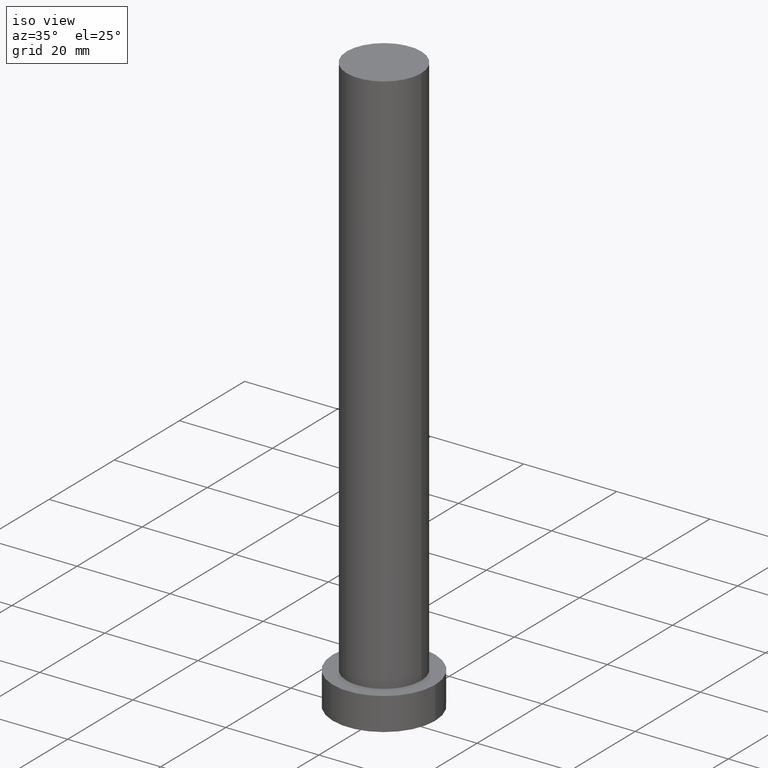
[diagram: clean part render]
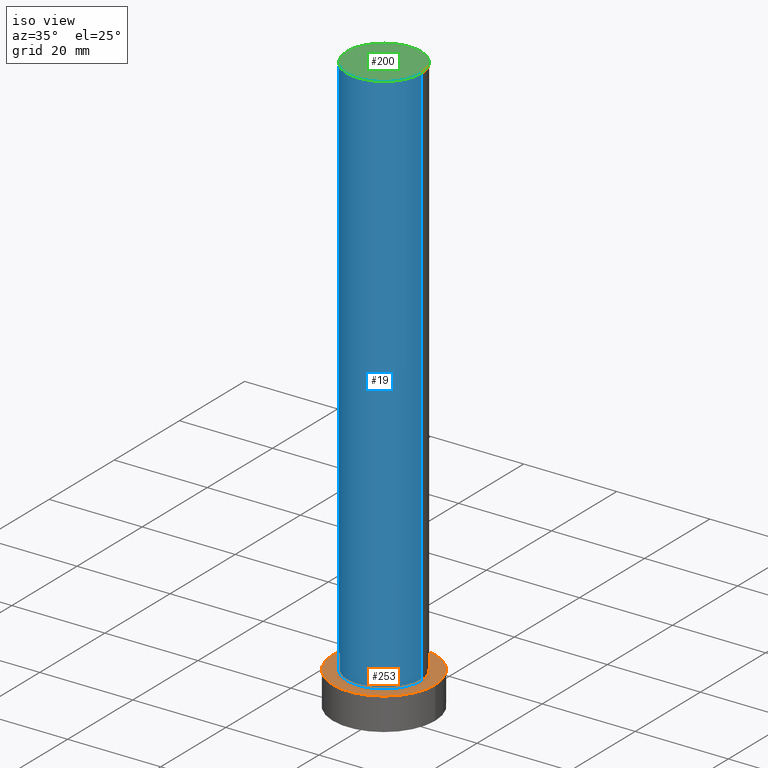
[diagram: same view with three faces highlighted in distinct colors, each labeled with its STEP entity id]
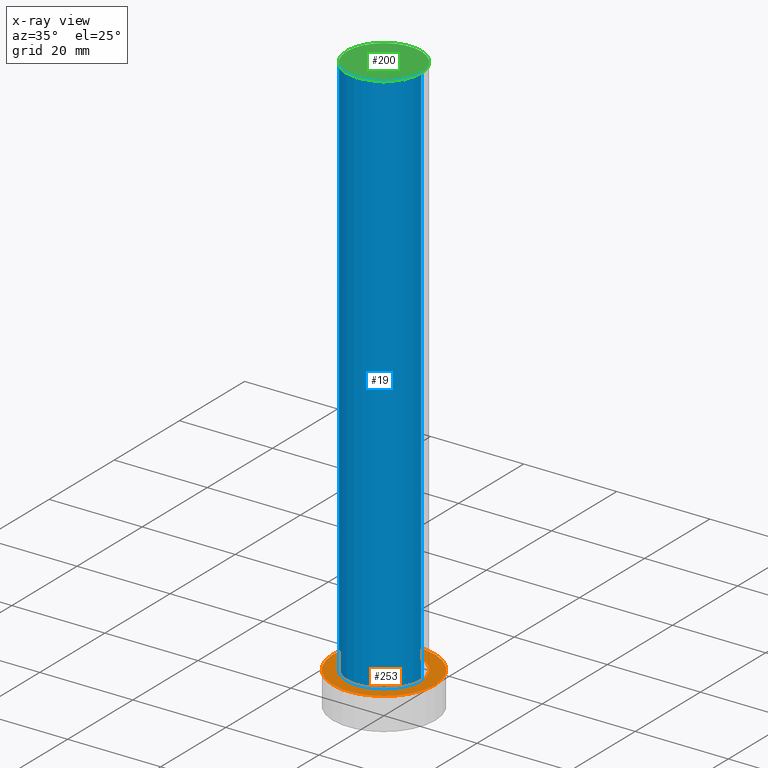
[diagram: x-ray of the same camera — body ghosted, the three highlighted faces saturated]
A machine part, iso view with three faces highlighted in distinct colors.
The next image is the same camera in x-ray (body ghosted, the three faces saturated) — at least one of them is partly hidden behind the body in this view.
Their STEP definitions:

[orange] entity #253 — the highlighted planar face has unit normal (0, 0, 1).
#13 = CARTESIAN_POINT ( 'NONE',  ( 0.000000000000000000, 0.000000000000000000, 7.000000000000000000 ) ) ;
#15 = ORIENTED_EDGE ( 'NONE', *, *, #97, .F. ) ;
#20 = DIRECTION ( 'NONE',  ( 1.000000000000000000, 0.000000000000000000, -0.000000000000000000 ) ) ;
#22 = EDGE_CURVE ( 'NONE', #158, #239, #190, .T. ) ;
#30 = AXIS2_PLACEMENT_3D ( 'NONE', #134, #84, #20 ) ;
#36 = CARTESIAN_POINT ( 'NONE',  ( 0.000000000000000000, 0.000000000000000000, 7.000000000000000000 ) ) ;
#40 = CARTESIAN_POINT ( 'NONE',  ( -11.00000000000000000, 0.000000000000000000, 7.000000000000000000 ) ) ;
#42 = CARTESIAN_POINT ( 'NONE',  ( 8.000000000000000000, 9.797174393178825657E-16, 7.000000000000000000 ) ) ;
#47 = AXIS2_PLACEMENT_3D ( 'NONE', #133, #235, #113 ) ;
#62 = AXIS2_PLACEMENT_3D ( 'NONE', #13, #180, #199 ) ;
#63 = FACE_BOUND ( 'NONE', #142, .T. ) ;
#75 = AXIS2_PLACEMENT_3D ( 'NONE', #125, #220, #98 ) ;
#84 = DIRECTION ( 'NONE',  ( 0.000000000000000000, 0.000000000000000000, 1.000000000000000000 ) ) ;
#85 = ORIENTED_EDGE ( 'NONE', *, *, #187, .T. ) ;
#93 = ORIENTED_EDGE ( 'NONE', *, *, #118, .T. ) ;
#97 = EDGE_CURVE ( 'NONE', #239, #158, #126, .T. ) ;
#98 = DIRECTION ( 'NONE',  ( 1.000000000000000000, 0.000000000000000000, 0.000000000000000000 ) ) ;
#113 = DIRECTION ( 'NONE',  ( 1.000000000000000000, 0.000000000000000000, 0.000000000000000000 ) ) ;
#118 = EDGE_CURVE ( 'NONE', #214, #246, #186, .T. ) ;
#125 = CARTESIAN_POINT ( 'NONE',  ( 0.000000000000000000, 0.000000000000000000, 7.000000000000000000 ) ) ;
#126 = CIRCLE ( 'NONE', #62, 8.000000000000000000 ) ;
#133 = CARTESIAN_POINT ( 'NONE',  ( 0.000000000000000000, 0.000000000000000000, 7.000000000000000000 ) ) ;
#134 = CARTESIAN_POINT ( 'NONE',  ( 0.000000000000000000, 0.000000000000000000, 7.000000000000000000 ) ) ;
#142 = EDGE_LOOP ( 'NONE', ( #216, #15 ) ) ;
#146 = AXIS2_PLACEMENT_3D ( 'NONE', #36, #152, #221 ) ;
#150 = FACE_OUTER_BOUND ( 'NONE', #175, .T. ) ;
#152 = DIRECTION ( 'NONE',  ( 0.000000000000000000, 0.000000000000000000, 1.000000000000000000 ) ) ;
#158 = VERTEX_POINT ( 'NONE', #238 ) ;
#171 = CIRCLE ( 'NONE', #47, 11.00000000000000000 ) ;
#172 = PLANE ( 'NONE',  #30 ) ;
#175 = EDGE_LOOP ( 'NONE', ( #85, #93 ) ) ;
#180 = DIRECTION ( 'NONE',  ( 0.000000000000000000, 0.000000000000000000, 1.000000000000000000 ) ) ;
#186 = CIRCLE ( 'NONE', #146, 11.00000000000000000 ) ;
#187 = EDGE_CURVE ( 'NONE', #246, #214, #171, .T. ) ;
#190 = CIRCLE ( 'NONE', #75, 8.000000000000000000 ) ;
#199 = DIRECTION ( 'NONE',  ( 1.000000000000000000, 0.000000000000000000, 0.000000000000000000 ) ) ;
#214 = VERTEX_POINT ( 'NONE', #241 ) ;
#216 = ORIENTED_EDGE ( 'NONE', *, *, #22, .F. ) ;
#220 = DIRECTION ( 'NONE',  ( 0.000000000000000000, 0.000000000000000000, 1.000000000000000000 ) ) ;
#221 = DIRECTION ( 'NONE',  ( 1.000000000000000000, 0.000000000000000000, 0.000000000000000000 ) ) ;
#235 = DIRECTION ( 'NONE',  ( 0.000000000000000000, 0.000000000000000000, 1.000000000000000000 ) ) ;
#238 = CARTESIAN_POINT ( 'NONE',  ( -8.000000000000000000, 0.000000000000000000, 7.000000000000000000 ) ) ;
#239 = VERTEX_POINT ( 'NONE', #42 ) ;
#241 = CARTESIAN_POINT ( 'NONE',  ( 11.00000000000000000, 1.347111479062088405E-15, 7.000000000000000000 ) ) ;
#246 = VERTEX_POINT ( 'NONE', #40 ) ;
#253 = ADVANCED_FACE ( 'NONE', ( #63, #150 ), #172, .T. ) ;

[blue] entity #19 — the highlighted cylindrical surface (partial cylindrical patch) has radius 8 mm, axis along (-0, -0, -1).
#4 = CARTESIAN_POINT ( 'NONE',  ( 8.000000000000000000, 9.797174393178825657E-16, 125.0000000000000000 ) ) ;
#6 = CARTESIAN_POINT ( 'NONE',  ( -8.000000000000000000, 0.000000000000000000, 125.0000000000000000 ) ) ;
#17 = CYLINDRICAL_SURFACE ( 'NONE', #46, 8.000000000000000000 ) ;
#19 = ADVANCED_FACE ( 'NONE', ( #52 ), #17, .T. ) ;
#22 = EDGE_CURVE ( 'NONE', #158, #239, #190, .T. ) ;
#24 = VECTOR ( 'NONE', #39, 1000.000000000000000 ) ;
#39 = DIRECTION ( 'NONE',  ( -0.000000000000000000, -0.000000000000000000, -1.000000000000000000 ) ) ;
#42 = CARTESIAN_POINT ( 'NONE',  ( 8.000000000000000000, 9.797174393178825657E-16, 7.000000000000000000 ) ) ;
#46 = AXIS2_PLACEMENT_3D ( 'NONE', #252, #139, #148 ) ;
#49 = ORIENTED_EDGE ( 'NONE', *, *, #22, .T. ) ;
#51 = CIRCLE ( 'NONE', #66, 8.000000000000000000 ) ;
#52 = FACE_OUTER_BOUND ( 'NONE', #211, .T. ) ;
#53 = VERTEX_POINT ( 'NONE', #124 ) ;
#65 = VECTOR ( 'NONE', #99, 1000.000000000000000 ) ;
#66 = AXIS2_PLACEMENT_3D ( 'NONE', #151, #83, #205 ) ;
#68 = ORIENTED_EDGE ( 'NONE', *, *, #206, .F. ) ;
#73 = ORIENTED_EDGE ( 'NONE', *, *, #77, .F. ) ;
#75 = AXIS2_PLACEMENT_3D ( 'NONE', #125, #220, #98 ) ;
#76 = CARTESIAN_POINT ( 'NONE',  ( 8.000000000000000000, 9.797174393178825657E-16, 125.0000000000000000 ) ) ;
#77 = EDGE_CURVE ( 'NONE', #164, #239, #233, .T. ) ;
#82 = LINE ( 'NONE', #6, #24 ) ;
#83 = DIRECTION ( 'NONE',  ( 0.000000000000000000, 0.000000000000000000, 1.000000000000000000 ) ) ;
#98 = DIRECTION ( 'NONE',  ( 1.000000000000000000, 0.000000000000000000, 0.000000000000000000 ) ) ;
#99 = DIRECTION ( 'NONE',  ( -0.000000000000000000, -0.000000000000000000, -1.000000000000000000 ) ) ;
#124 = CARTESIAN_POINT ( 'NONE',  ( -8.000000000000000000, 0.000000000000000000, 125.0000000000000000 ) ) ;
#125 = CARTESIAN_POINT ( 'NONE',  ( 0.000000000000000000, 0.000000000000000000, 7.000000000000000000 ) ) ;
#139 = DIRECTION ( 'NONE',  ( -0.000000000000000000, -0.000000000000000000, -1.000000000000000000 ) ) ;
#148 = DIRECTION ( 'NONE',  ( -1.000000000000000000, 0.000000000000000000, 0.000000000000000000 ) ) ;
#151 = CARTESIAN_POINT ( 'NONE',  ( 0.000000000000000000, 0.000000000000000000, 125.0000000000000000 ) ) ;
#157 = ORIENTED_EDGE ( 'NONE', *, *, #166, .T. ) ;
#158 = VERTEX_POINT ( 'NONE', #238 ) ;
#164 = VERTEX_POINT ( 'NONE', #4 ) ;
#166 = EDGE_CURVE ( 'NONE', #53, #158, #82, .T. ) ;
#190 = CIRCLE ( 'NONE', #75, 8.000000000000000000 ) ;
#205 = DIRECTION ( 'NONE',  ( 1.000000000000000000, 0.000000000000000000, 0.000000000000000000 ) ) ;
#206 = EDGE_CURVE ( 'NONE', #53, #164, #51, .T. ) ;
#211 = EDGE_LOOP ( 'NONE', ( #73, #68, #157, #49 ) ) ;
#220 = DIRECTION ( 'NONE',  ( 0.000000000000000000, 0.000000000000000000, 1.000000000000000000 ) ) ;
#233 = LINE ( 'NONE', #76, #65 ) ;
#238 = CARTESIAN_POINT ( 'NONE',  ( -8.000000000000000000, 0.000000000000000000, 7.000000000000000000 ) ) ;
#239 = VERTEX_POINT ( 'NONE', #42 ) ;
#252 = CARTESIAN_POINT ( 'NONE',  ( 0.000000000000000000, 0.000000000000000000, 125.0000000000000000 ) ) ;

[green] entity #200 — the highlighted planar face has unit normal (0, 0, 1).
#4 = CARTESIAN_POINT ( 'NONE',  ( 8.000000000000000000, 9.797174393178825657E-16, 125.0000000000000000 ) ) ;
#51 = CIRCLE ( 'NONE', #66, 8.000000000000000000 ) ;
#53 = VERTEX_POINT ( 'NONE', #124 ) ;
#58 = CARTESIAN_POINT ( 'NONE',  ( 0.000000000000000000, 0.000000000000000000, 125.0000000000000000 ) ) ;
#61 = CARTESIAN_POINT ( 'NONE',  ( 0.000000000000000000, 0.000000000000000000, 125.0000000000000000 ) ) ;
#66 = AXIS2_PLACEMENT_3D ( 'NONE', #151, #83, #205 ) ;
#70 = CIRCLE ( 'NONE', #196, 8.000000000000000000 ) ;
#83 = DIRECTION ( 'NONE',  ( 0.000000000000000000, 0.000000000000000000, 1.000000000000000000 ) ) ;
#86 = FACE_OUTER_BOUND ( 'NONE', #229, .T. ) ;
#108 = DIRECTION ( 'NONE',  ( 0.000000000000000000, 0.000000000000000000, 1.000000000000000000 ) ) ;
#124 = CARTESIAN_POINT ( 'NONE',  ( -8.000000000000000000, 0.000000000000000000, 125.0000000000000000 ) ) ;
#151 = CARTESIAN_POINT ( 'NONE',  ( 0.000000000000000000, 0.000000000000000000, 125.0000000000000000 ) ) ;
#164 = VERTEX_POINT ( 'NONE', #4 ) ;
#184 = ORIENTED_EDGE ( 'NONE', *, *, #206, .T. ) ;
#191 = DIRECTION ( 'NONE',  ( 1.000000000000000000, 0.000000000000000000, -0.000000000000000000 ) ) ;
#192 = ORIENTED_EDGE ( 'NONE', *, *, #213, .T. ) ;
#196 = AXIS2_PLACEMENT_3D ( 'NONE', #58, #108, #204 ) ;
#200 = ADVANCED_FACE ( 'NONE', ( #86 ), #222, .T. ) ;
#204 = DIRECTION ( 'NONE',  ( 1.000000000000000000, 0.000000000000000000, 0.000000000000000000 ) ) ;
#205 = DIRECTION ( 'NONE',  ( 1.000000000000000000, 0.000000000000000000, 0.000000000000000000 ) ) ;
#206 = EDGE_CURVE ( 'NONE', #53, #164, #51, .T. ) ;
#213 = EDGE_CURVE ( 'NONE', #164, #53, #70, .T. ) ;
#215 = AXIS2_PLACEMENT_3D ( 'NONE', #61, #237, #191 ) ;
#222 = PLANE ( 'NONE',  #215 ) ;
#229 = EDGE_LOOP ( 'NONE', ( #184, #192 ) ) ;
#237 = DIRECTION ( 'NONE',  ( 0.000000000000000000, 0.000000000000000000, 1.000000000000000000 ) ) ;